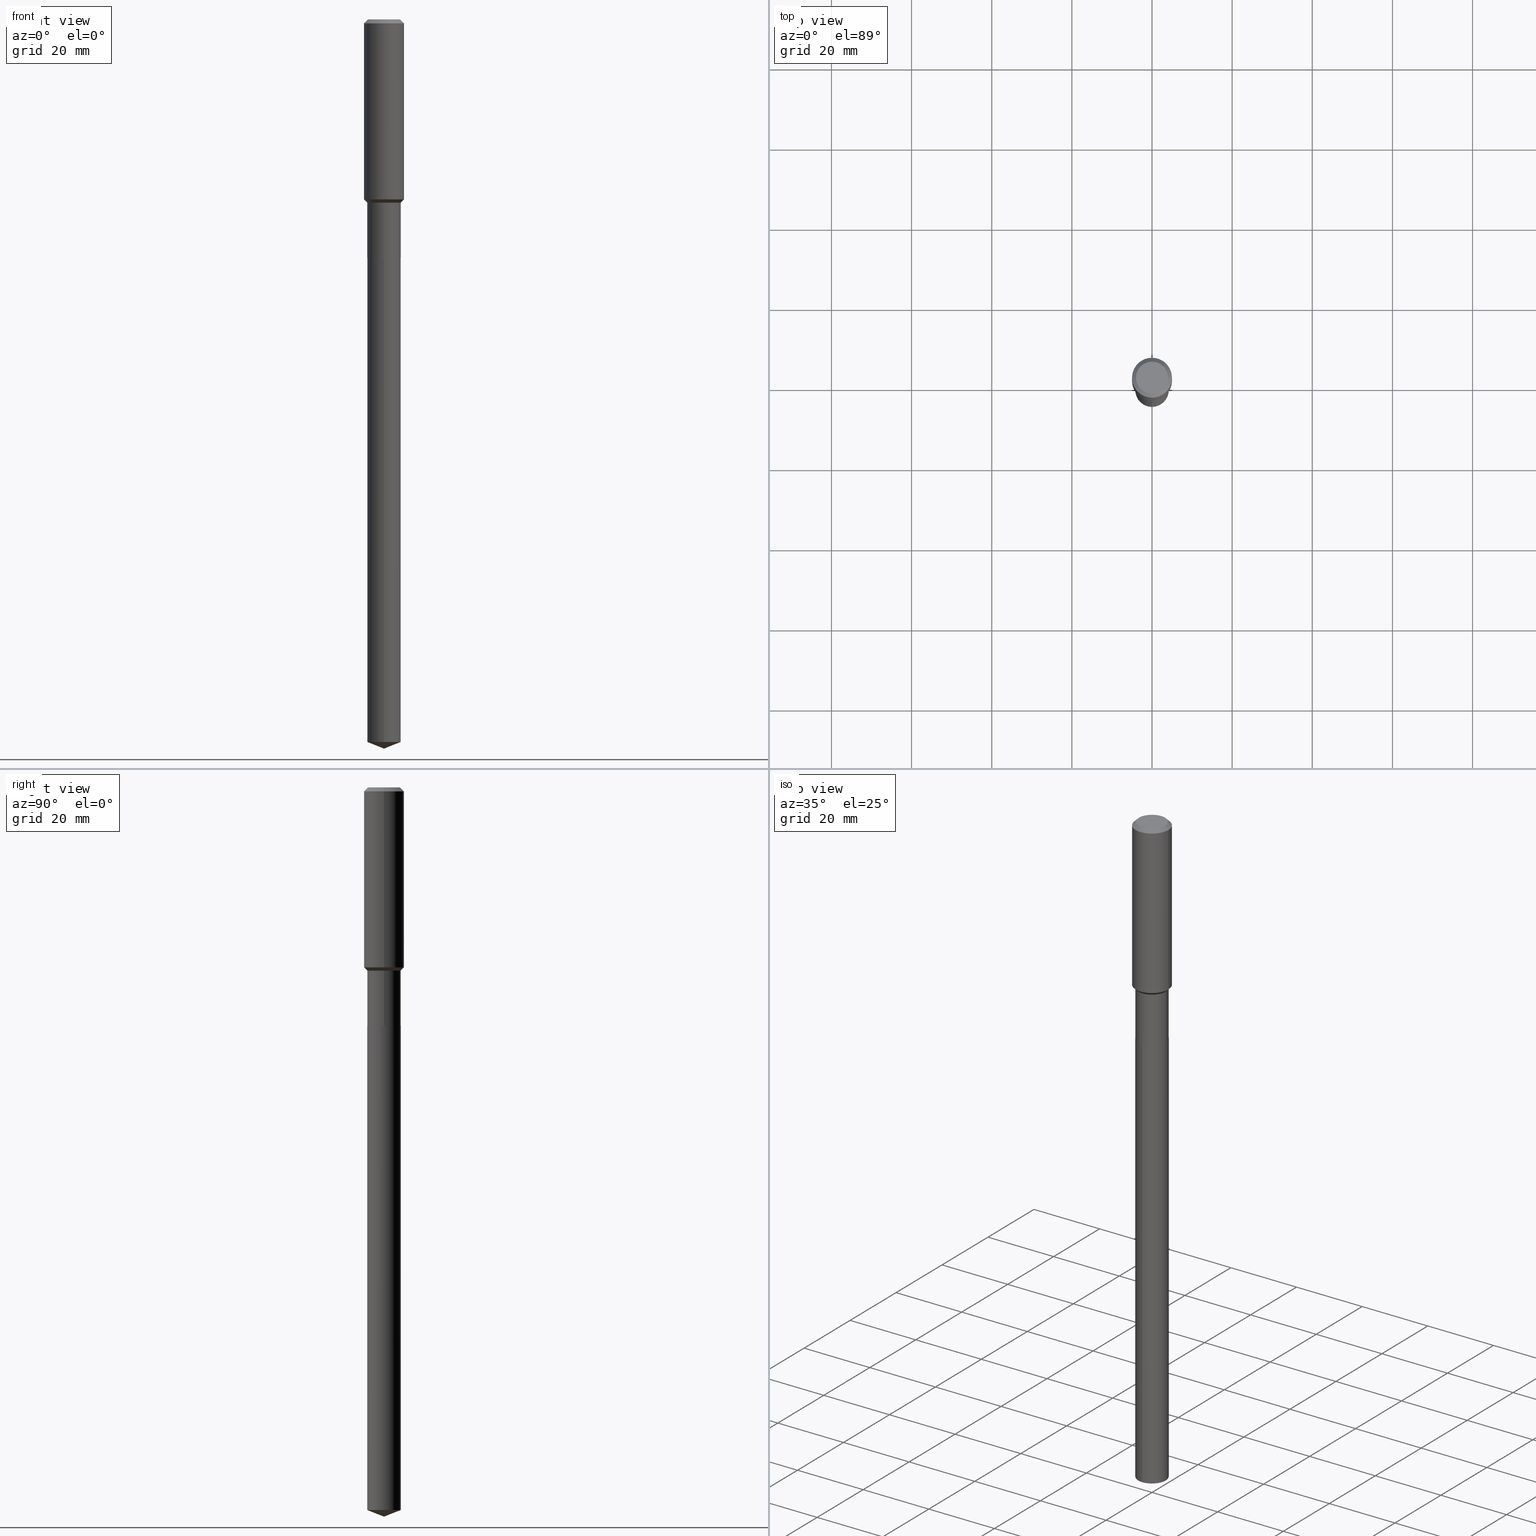
[diagram: canonical four-view strip — front | top / right | iso, engineering-drawing reading convention]
A machine part, canonical four-view strip (front | top / right | iso — engineering-drawing reading convention). The complete STEP part file that produces these views, byte-faithful:
ISO-10303-21;
HEADER;
FILE_DESCRIPTION (( 'STEP AP203' ),
    '1' );
FILE_NAME ('56524.STEP',
    '2024-04-24T18:18:40',
    ( '' ),
    ( '' ),
    'SwSTEP 2.0',
    'SolidWorks 2023',
    '' );
FILE_SCHEMA (( 'CONFIG_CONTROL_DESIGN' ));
ENDSEC;

DATA;
#1 = CARTESIAN_POINT ( 'NONE',  ( 4.403800226178191442E-29, -6.287459594988733378E-15, -1.800799999999999068 ) ) ;
#2 = AXIS2_PLACEMENT_3D ( 'NONE', #238, #19, #346 ) ;
#3 =( NAMED_UNIT ( * ) SI_UNIT ( $, .STERADIAN. ) SOLID_ANGLE_UNIT ( ) );
#4 = CARTESIAN_POINT ( 'NONE',  ( 0.1968500000000002192, -7.547535210177219619E-15, -1.767999999999998684 ) ) ;
#5 = ORIENTED_EDGE ( 'NONE', *, *, #426, .F. ) ;
#6 = CIRCLE ( 'NONE', #84, 0.1640500000000000014 ) ;
#7 = DIRECTION ( 'NONE',  ( -6.497071151882111948E-15, -0.9304175679820234635, 0.3665012267242999666 ) ) ;
#8 = APPROVAL_STATUS ( 'not_yet_approved' ) ;
#9 = PLANE ( 'NONE',  #331 ) ;
#10 = ORIENTED_EDGE ( 'NONE', *, *, #137, .F. ) ;
#11 = ADVANCED_FACE ( 'NONE', ( #340 ), #9, .F. ) ;
#12 = CARTESIAN_POINT ( 'NONE',  ( -9.427742298522567634E-47, 1.346031739168368355E-32, 3.855188123715870730E-18 ) ) ;
#13 = ORIENTED_EDGE ( 'NONE', *, *, #332, .F. ) ;
#14 = LOCAL_TIME ( 14, 18, 40.00000000000000000, #242 ) ;
#15 = ORIENTED_EDGE ( 'NONE', *, *, #335, .T. ) ;
#16 = CARTESIAN_POINT ( 'NONE',  ( -0.1635500000000000009, -7.012656572194777163E-15, -2.342100000000000293 ) ) ;
#17 = EDGE_LOOP ( 'NONE', ( #378, #196, #264, #66 ) ) ;
#18 = ORIENTED_EDGE ( 'NONE', *, *, #254, .F. ) ;
#19 = DIRECTION ( 'NONE',  ( 2.445468806185136597E-29, -3.491481338843145583E-15, -1.000000000000000000 ) ) ;
#20 = EDGE_CURVE ( 'NONE', #272, #273, #90, .T. ) ;
#21 = APPROVAL_STATUS ( 'not_yet_approved' ) ;
#22 = DIRECTION ( 'NONE',  ( -0.7071067811865453523, 2.468850131082234184E-15, -0.7071067811865496822 ) ) ;
#23 = DIRECTION ( 'NONE',  ( -2.445468806185136597E-29, 3.491481338843145583E-15, 1.000000000000000000 ) ) ;
#24 = VECTOR ( 'NONE', #22, 39.37007874015748143 ) ;
#25 = CARTESIAN_POINT ( 'NONE',  ( 1.752193187983949618E-28, -2.501625201518920101E-14, -7.165000000000000036 ) ) ;
#26 = CIRCLE ( 'NONE', #160, 0.1574800000000000089 ) ;
#27 = EDGE_CURVE ( 'NONE', #406, #231, #47, .T. ) ;
#28 = CARTESIAN_POINT ( 'NONE',  ( 1.752193272761362353E-28, -2.501625201518920101E-14, -7.165000000000000036 ) ) ;
#29 = LINE ( 'NONE', #288, #83 ) ;
#30 =( GEOMETRIC_REPRESENTATION_CONTEXT ( 3 ) GLOBAL_UNCERTAINTY_ASSIGNED_CONTEXT ( ( #96 ) ) GLOBAL_UNIT_ASSIGNED_CONTEXT ( ( #227, #411, #3 ) ) REPRESENTATION_CONTEXT ( 'NONE', 'WORKASPACE' ) );
#31 = APPROVAL_PERSON_ORGANIZATION ( #483, #450, #56 ) ;
#32 = SECURITY_CLASSIFICATION ( '', '', #389 ) ;
#33 = CARTESIAN_POINT ( 'NONE',  ( 1.165645358014617717E-15, 0.1640499999999751601, -7.100378986475369913 ) ) ;
#34 = ADVANCED_FACE ( 'NONE', ( #325 ), #218, .T. ) ;
#35 = ORIENTED_EDGE ( 'NONE', *, *, #40, .F. ) ;
#36 = DESIGN_CONTEXT ( 'detailed design', #372, 'design' ) ;
#37 = PRODUCT_DEFINITION_FORMATION_WITH_SPECIFIED_SOURCE ( 'ANY', '', #374, .NOT_KNOWN. ) ;
#38 = ORIENTED_EDGE ( 'NONE', *, *, #178, .F. ) ;
#39 = ORIENTED_EDGE ( 'NONE', *, *, #490, .F. ) ;
#40 = EDGE_CURVE ( 'NONE', #474, #89, #29, .T. ) ;
#41 = CONICAL_SURFACE ( 'NONE', #447, 99.94676754583905165, 1.195550537616116404 ) ;
#42 = CARTESIAN_POINT ( 'NONE',  ( 9.627810689950943645E-31, -1.374596203102555315E-16, -0.03937000000000024508 ) ) ;
#43 = COORDINATED_UNIVERSAL_TIME_OFFSET ( 5, 0, .BEHIND. ) ;
#44 = DIRECTION ( 'NONE',  ( 1.000000000000000000, -6.982962677686265922E-15, 4.876176775795935793E-29 ) ) ;
#45 = VERTEX_POINT ( 'NONE', #249 ) ;
#46 = CARTESIAN_POINT ( 'NONE',  ( -7.875722850354582093E-28, 1.124424103179934849E-13, 32.20507874015748229 ) ) ;
#47 = LINE ( 'NONE', #94, #291 ) ;
#48 = VERTEX_POINT ( 'NONE', #361 ) ;
#49 = ORIENTED_EDGE ( 'NONE', *, *, #350, .T. ) ;
#50 = FACE_OUTER_BOUND ( 'NONE', #317, .T. ) ;
#51 = CC_DESIGN_PERSON_AND_ORGANIZATION_ASSIGNMENT ( #427, #247, ( #37 ) ) ;
#52 = EDGE_LOOP ( 'NONE', ( #161, #429, #13, #230 ) ) ;
#53 = FACE_OUTER_BOUND ( 'NONE', #388, .T. ) ;
#54 = DIRECTION ( 'NONE',  ( -1.000000000000000000, 6.982962677686265922E-15, -4.876176775795935793E-29 ) ) ;
#55 = AXIS2_PLACEMENT_3D ( 'NONE', #119, #403, #70 ) ;
#56 = APPROVAL_ROLE ( '' ) ;
#57 = AXIS2_PLACEMENT_3D ( 'NONE', #271, #428, #100 ) ;
#58 = CARTESIAN_POINT ( 'NONE',  ( 9.627810689950943645E-31, -1.374596203102555315E-16, -0.03937000000000024508 ) ) ;
#59 = ORIENTED_EDGE ( 'NONE', *, *, #20, .F. ) ;
#60 = FACE_OUTER_BOUND ( 'NONE', #341, .T. ) ;
#61 = CALENDAR_DATE ( 2024, 24, 4 ) ;
#62 = LINE ( 'NONE', #182, #243 ) ;
#63 = CYLINDRICAL_SURFACE ( 'NONE', #352, 0.1968500000000001082 ) ;
#64 = DIRECTION ( 'NONE',  ( 6.982962677686265922E-15, 1.000000000000000000, -3.491451781603517601E-15 ) ) ;
#65 = CARTESIAN_POINT ( 'NONE',  ( -0.1640500000000000014, 1.165645358014444365E-15, -8.069513015563172164E-30 ) ) ;
#66 = ORIENTED_EDGE ( 'NONE', *, *, #236, .F. ) ;
#67 = ADVANCED_FACE ( 'NONE', ( #156 ), #449, .T. ) ;
#68 = COORDINATED_UNIVERSAL_TIME_OFFSET ( 5, 0, .BEHIND. ) ;
#69 = APPROVAL_PERSON_ORGANIZATION ( #311, #183, #173 ) ;
#70 = DIRECTION ( 'NONE',  ( -6.982962677686265133E-15, -1.000000000000000000, 3.330506545156066257E-15 ) ) ;
#71 = AXIS2_PLACEMENT_3D ( 'NONE', #103, #241, #54 ) ;
#72 = DIRECTION ( 'NONE',  ( 1.000000000000000000, -6.982962677686265922E-15, 0.000000000000000000 ) ) ;
#73 = CARTESIAN_POINT ( 'NONE',  ( 4.323588849335318687E-29, -6.172939007074677222E-15, -1.767999999999998684 ) ) ;
#74 = CARTESIAN_POINT ( 'NONE',  ( 5.727532490966208999E-29, -8.177398443704531239E-15, -2.342100000000000293 ) ) ;
#75 = CARTESIAN_POINT ( 'NONE',  ( 0.1640500000000000014, -1.145555027274432057E-15, 7.999368000693231542E-30 ) ) ;
#76 = ADVANCED_FACE ( 'NONE', ( #443 ), #399, .F. ) ;
#77 = VERTEX_POINT ( 'NONE', #25 ) ;
#78 = CARTESIAN_POINT ( 'NONE',  ( 5.727532490966208999E-29, -8.177398443704531239E-15, -2.342100000000000293 ) ) ;
#79 = ADVANCED_FACE ( 'NONE', ( #353 ), #111, .T. ) ;
#80 = CARTESIAN_POINT ( 'NONE',  ( 0.1968500000000001082, -1.374596203102542397E-15, 9.598753983154305062E-30 ) ) ;
#81 = CARTESIAN_POINT ( 'NONE',  ( 0.000000000000000000, 0.000000000000000000, 0.000000000000000000 ) ) ;
#82 = ADVANCED_FACE ( 'NONE', ( #60 ), #129, .T. ) ;
#83 = VECTOR ( 'NONE', #488, 39.37007874015748143 ) ;
#84 = AXIS2_PLACEMENT_3D ( 'NONE', #265, #301, #339 ) ;
#85 = ORIENTED_EDGE ( 'NONE', *, *, #132, .T. ) ;
#86 = CYLINDRICAL_SURFACE ( 'NONE', #259, 0.1640500000000000014 ) ;
#87 = ORIENTED_EDGE ( 'NONE', *, *, #350, .F. ) ;
#88 = DIRECTION ( 'NONE',  ( -2.445468806185136597E-29, 3.491481338843145583E-15, 1.000000000000000000 ) ) ;
#89 = VERTEX_POINT ( 'NONE', #355 ) ;
#90 = CIRCLE ( 'NONE', #313, 0.1574800000000000089 ) ;
#91 = VECTOR ( 'NONE', #187, 39.37007874015748143 ) ;
#92 = MANIFOLD_SOLID_BREP ( 'Body-Move/Copy2[1]', #228 ) ;
#93 = CALENDAR_DATE ( 2024, 24, 4 ) ;
#94 = CARTESIAN_POINT ( 'NONE',  ( 0.1640499999999999459, -7.433014622263164252E-15, -1.800799999999999068 ) ) ;
#95 = VERTEX_POINT ( 'NONE', #203 ) ;
#96 = UNCERTAINTY_MEASURE_WITH_UNIT (LENGTH_MEASURE( 1.000000000000000082E-05 ), #227, 'distance_accuracy_value', 'NONE');
#97 = CC_DESIGN_DATE_AND_TIME_ASSIGNMENT ( #278, #442, ( #232 ) ) ;
#98 = PERSON_AND_ORGANIZATION ( #274, #120 ) ;
#99 = DIRECTION ( 'NONE',  ( -1.000000000000000000, 6.982962677686265922E-15, 0.000000000000000000 ) ) ;
#100 = DIRECTION ( 'NONE',  ( 1.000000000000000000, -6.982962677686266711E-15, 0.000000000000000000 ) ) ;
#101 = EDGE_LOOP ( 'NONE', ( #419, #384 ) ) ;
#102 = DIRECTION ( 'NONE',  ( -6.982962677686267499E-15, -1.000000000000000000, 3.498627837350036566E-15 ) ) ;
#103 = CARTESIAN_POINT ( 'NONE',  ( -4.713871149261283817E-47, 6.730158695841841775E-33, 1.927594061857935365E-18 ) ) ;
#104 = ORIENTED_EDGE ( 'NONE', *, *, #132, .F. ) ;
#105 = APPROVAL_DATE_TIME ( #148, #450 ) ;
#106 = ORIENTED_EDGE ( 'NONE', *, *, #236, .T. ) ;
#107 = AXIS2_PLACEMENT_3D ( 'NONE', #154, #115, #112 ) ;
#108 = SHAPE_DEFINITION_REPRESENTATION ( #302, #296 ) ;
#109 = ORIENTED_EDGE ( 'NONE', *, *, #445, .T. ) ;
#110 = DATE_AND_TIME ( #481, #412 ) ;
#111 = CYLINDRICAL_SURFACE ( 'NONE', #329, 0.1640500000000000014 ) ;
#112 = DIRECTION ( 'NONE',  ( 1.000000000000000000, -6.982962677686260400E-15, 0.000000000000000000 ) ) ;
#113 = EDGE_CURVE ( 'NONE', #273, #267, #153, .T. ) ;
#114 = CALENDAR_DATE ( 2024, 24, 4 ) ;
#115 = DIRECTION ( 'NONE',  ( -2.445468806185136597E-29, 3.491481338843145583E-15, 1.000000000000000000 ) ) ;
#116 = DIRECTION ( 'NONE',  ( 1.000000000000000000, -6.982962677686261977E-15, 0.000000000000000000 ) ) ;
#117 = VECTOR ( 'NONE', #284, 39.37007874015748143 ) ;
#118 = DIRECTION ( 'NONE',  ( 1.000000000000000000, 0.000000000000000000, 0.000000000000000000 ) ) ;
#119 = CARTESIAN_POINT ( 'NONE',  ( 5.727532490966208999E-29, -8.177398443704531239E-15, -2.342100000000000293 ) ) ;
#120 = ORGANIZATION ( 'UNSPECIFIED', 'UNSPECIFIED', '' ) ;
#121 = LENGTH_MEASURE_WITH_UNIT ( LENGTH_MEASURE( 0.02539999999999999897 ), #166 );
#122 = VECTOR ( 'NONE', #425, 39.37007874015748143 ) ;
#123 = CIRCLE ( 'NONE', #190, 0.1640500000000000569 ) ;
#124 = DIRECTION ( 'NONE',  ( -2.445468806185136597E-29, 3.491481338843145583E-15, 1.000000000000000000 ) ) ;
#125 = EDGE_CURVE ( 'NONE', #474, #152, #392, .T. ) ;
#126 = DIRECTION ( 'NONE',  ( -2.445468806185136597E-29, 3.491481338843145583E-15, 1.000000000000000000 ) ) ;
#127 = LOCAL_TIME ( 14, 18, 40.00000000000000000, #68 ) ;
#128 = DIRECTION ( 'NONE',  ( 1.000000000000000000, -6.982962677686265922E-15, 0.000000000000000000 ) ) ;
#129 = CONICAL_SURFACE ( 'NONE', #197, 0.1640499999999999459, 0.7853981633974482790 ) ;
#130 = ORIENTED_EDGE ( 'NONE', *, *, #27, .T. ) ;
#131 = DATE_AND_TIME ( #93, #261 ) ;
#132 = EDGE_CURVE ( 'NONE', #48, #314, #62, .T. ) ;
#133 = ORIENTED_EDGE ( 'NONE', *, *, #254, .T. ) ;
#134 = EDGE_CURVE ( 'NONE', #267, #345, #304, .T. ) ;
#135 = ORIENTED_EDGE ( 'NONE', *, *, #396, .T. ) ;
#136 = ORIENTED_EDGE ( 'NONE', *, *, #363, .F. ) ;
#137 = EDGE_CURVE ( 'NONE', #416, #267, #310, .T. ) ;
#138 = CARTESIAN_POINT ( 'NONE',  ( -9.427742298522567634E-47, 1.346031739168368355E-32, 3.855188123715870730E-18 ) ) ;
#139 = DIRECTION ( 'NONE',  ( -6.982962677686265133E-15, -1.000000000000000000, 3.330506545156066257E-15 ) ) ;
#140 = ORIENTED_EDGE ( 'NONE', *, *, #290, .T. ) ;
#141 = ORIENTED_EDGE ( 'NONE', *, *, #191, .T. ) ;
#142 = DIRECTION ( 'NONE',  ( -2.445489445895254292E-29, 3.491451781603517601E-15, 1.000000000000000000 ) ) ;
#143 = ADVANCED_FACE ( 'NONE', ( #53 ), #451, .T. ) ;
#144 = PERSON_AND_ORGANIZATION ( #274, #120 ) ;
#145 = ORIENTED_EDGE ( 'NONE', *, *, #219, .F. ) ;
#146 = CARTESIAN_POINT ( 'NONE',  ( 1.736385353301688746E-28, -2.479070008840053983E-14, -7.100378986475368137 ) ) ;
#147 = CC_DESIGN_APPROVAL ( #450, ( #32 ) ) ;
#148 = DATE_AND_TIME ( #114, #127 ) ;
#149 = ORIENTED_EDGE ( 'NONE', *, *, #461, .F. ) ;
#150 = CARTESIAN_POINT ( 'NONE',  ( -0.1640499999999999459, -5.121814236974288816E-15, -1.800799999999999068 ) ) ;
#151 = CARTESIAN_POINT ( 'NONE',  ( 0.000000000000000000, 0.000000000000000000, 0.000000000000000000 ) ) ;
#152 = VERTEX_POINT ( 'NONE', #16 ) ;
#153 = LINE ( 'NONE', #475, #24 ) ;
#154 = CARTESIAN_POINT ( 'NONE',  ( 5.727532490966208999E-29, -8.177398443704531239E-15, -2.342100000000000293 ) ) ;
#155 = COORDINATED_UNIVERSAL_TIME_OFFSET ( 5, 0, .BEHIND. ) ;
#156 = FACE_OUTER_BOUND ( 'NONE', #181, .T. ) ;
#157 = CARTESIAN_POINT ( 'NONE',  ( 0.000000000000000000, 0.000000000000000000, 0.000000000000000000 ) ) ;
#158 = CARTESIAN_POINT ( 'NONE',  ( 5.727532490966208999E-29, -8.177398443704531239E-15, -2.342100000000000293 ) ) ;
#159 = DIRECTION ( 'NONE',  ( -2.445489445895254572E-29, 3.491451781603517601E-15, 1.000000000000000000 ) ) ;
#160 = AXIS2_PLACEMENT_3D ( 'NONE', #138, #126, #195 ) ;
#161 = ORIENTED_EDGE ( 'NONE', *, *, #219, .T. ) ;
#162 = ADVANCED_FACE ( 'NONE', ( #315 ), #375, .T. ) ;
#163 = DIRECTION ( 'NONE',  ( 1.000000000000000000, -6.982962677686266711E-15, 0.000000000000000000 ) ) ;
#164 = ADVANCED_FACE ( 'NONE', ( #257 ), #165, .T. ) ;
#165 = CONICAL_SURFACE ( 'NONE', #270, 0.1968500000000000250, 0.7853981633974452814 ) ;
#166 =( LENGTH_UNIT ( ) NAMED_UNIT ( * ) SI_UNIT ( $, .METRE. ) );
#167 = DIRECTION ( 'NONE',  ( 1.000000000000000000, -6.982962677686260400E-15, 0.000000000000000000 ) ) ;
#168 = PRODUCT_RELATED_PRODUCT_CATEGORY ( 'detail', '', ( #374 ) ) ;
#169 = CARTESIAN_POINT ( 'NONE',  ( 1.752183519930936340E-28, -2.501639046721106603E-14, -7.165000000000000036 ) ) ;
#170 = EDGE_LOOP ( 'NONE', ( #306, #140, #379 ) ) ;
#171 = CONICAL_SURFACE ( 'NONE', #282, 0.1635500000000000009, 0.7853981633976190313 ) ;
#172 = DIRECTION ( 'NONE',  ( -2.445489445895254292E-29, 3.491451781603517601E-15, 1.000000000000000000 ) ) ;
#173 = APPROVAL_ROLE ( '' ) ;
#174 = CARTESIAN_POINT ( 'NONE',  ( 5.727532490966208999E-29, -8.177398443704531239E-15, -2.342100000000000293 ) ) ;
#175 = ORIENTED_EDGE ( 'NONE', *, *, #113, .F. ) ;
#176 = ADVANCED_FACE ( 'NONE', ( #383 ), #41, .T. ) ;
#177 = ORIENTED_EDGE ( 'NONE', *, *, #342, .F. ) ;
#178 = EDGE_CURVE ( 'NONE', #152, #312, #436, .T. ) ;
#179 = CONICAL_SURFACE ( 'NONE', #107, 0.1635500000000000009, 0.7853981633976190313 ) ;
#180 = APPROVAL_STATUS ( 'not_yet_approved' ) ;
#181 = EDGE_LOOP ( 'NONE', ( #418, #460, #85, #458 ) ) ;
#182 = CARTESIAN_POINT ( 'NONE',  ( -1.145555027274374667E-15, -0.1640500000000081615, -2.342099999999999405 ) ) ;
#183 = APPROVAL ( #8, 'UNSPECIFIED' ) ;
#184 = COORDINATED_UNIVERSAL_TIME_OFFSET ( 5, 0, .BEHIND. ) ;
#185 = AXIS2_PLACEMENT_3D ( 'NONE', #337, #172, #307 ) ;
#186 = PERSON_AND_ORGANIZATION ( #274, #120 ) ;
#187 = DIRECTION ( 'NONE',  ( 0.7071067811865453523, -7.319954787623248157E-15, -0.7071067811865496822 ) ) ;
#188 = CC_DESIGN_APPROVAL ( #183, ( #232 ) ) ;
#189 = CIRCLE ( 'NONE', #455, 0.1968500000000000250 ) ;
#190 = AXIS2_PLACEMENT_3D ( 'NONE', #468, #286, #359 ) ;
#191 = EDGE_CURVE ( 'NONE', #273, #272, #26, .T. ) ;
#192 = CARTESIAN_POINT ( 'NONE',  ( -0.1968500000000002192, -4.774235631730917856E-15, -1.767999999999998684 ) ) ;
#193 = AXIS2_PLACEMENT_3D ( 'NONE', #260, #410, #226 ) ;
#194 = EDGE_LOOP ( 'NONE', ( #38, #417, #391, #149 ) ) ;
#195 = DIRECTION ( 'NONE',  ( 1.000000000000000000, -6.982962677686265922E-15, 4.876223630392693006E-29 ) ) ;
#196 = ORIENTED_EDGE ( 'NONE', *, *, #137, .T. ) ;
#197 = AXIS2_PLACEMENT_3D ( 'NONE', #439, #210, #213 ) ;
#198 = ORIENTED_EDGE ( 'NONE', *, *, #485, .F. ) ;
#199 = VERTEX_POINT ( 'NONE', #33 ) ;
#200 = DIRECTION ( 'NONE',  ( 1.000000000000000000, -6.982962677686265922E-15, 0.000000000000000000 ) ) ;
#201 = ADVANCED_FACE ( 'NONE', ( #334 ), #171, .T. ) ;
#202 = ORIENTED_EDGE ( 'NONE', *, *, #215, .T. ) ;
#203 = CARTESIAN_POINT ( 'NONE',  ( -0.1640499999999999459, -6.065910790997477389E-15, -1.800799999999999068 ) ) ;
#204 = ORIENTED_EDGE ( 'NONE', *, *, #235, .T. ) ;
#205 = ORIENTED_EDGE ( 'NONE', *, *, #461, .T. ) ;
#206 = CARTESIAN_POINT ( 'NONE',  ( -1.145555027274374667E-15, -0.1640500000000081615, -2.342099999999999405 ) ) ;
#207 = CLOSED_SHELL ( 'NONE', ( #201, #143, #34, #448, #387, #79, #82, #303, #164, #258, #11, #326 ) ) ;
#208 = CIRCLE ( 'NONE', #333, 0.1968500000000002192 ) ;
#209 = DIRECTION ( 'NONE',  ( 2.445468806185136597E-29, -3.491481338843145583E-15, -1.000000000000000000 ) ) ;
#210 = DIRECTION ( 'NONE',  ( -2.445468806185136597E-29, 3.491481338843145583E-15, 1.000000000000000000 ) ) ;
#211 = FACE_OUTER_BOUND ( 'NONE', #423, .T. ) ;
#212 = DIMENSIONAL_EXPONENTS ( 1.000000000000000000, 0.000000000000000000, 0.000000000000000000, 0.000000000000000000, 0.000000000000000000, 0.000000000000000000, 0.000000000000000000 ) ;
#213 = DIRECTION ( 'NONE',  ( 1.000000000000000000, -6.982962677686266711E-15, 0.000000000000000000 ) ) ;
#214 = DIRECTION ( 'NONE',  ( -2.445468806185136877E-29, 3.491481338843145188E-15, 1.000000000000000000 ) ) ;
#215 = EDGE_CURVE ( 'NONE', #45, #314, #6, .T. ) ;
#216 = AXIS2_PLACEMENT_3D ( 'NONE', #467, #142, #102 ) ;
#217 = CARTESIAN_POINT ( 'NONE',  ( -0.1574800000000000089, 1.168406772637159618E-15, 3.855188123707939751E-18 ) ) ;
#218 = CYLINDRICAL_SURFACE ( 'NONE', #390, 0.1968500000000001082 ) ;
#219 = EDGE_CURVE ( 'NONE', #406, #95, #234, .T. ) ;
#220 = DIRECTION ( 'NONE',  ( -2.445468806185136597E-29, 3.491481338843145583E-15, 1.000000000000000000 ) ) ;
#221 = AXIS2_PLACEMENT_3D ( 'NONE', #489, #446, #116 ) ;
#222 = LINE ( 'NONE', #367, #245 ) ;
#223 = AXIS2_PLACEMENT_3D ( 'NONE', #480, #444, #118 ) ;
#224 = LINE ( 'NONE', #169, #393 ) ;
#225 = LINE ( 'NONE', #75, #464 ) ;
#226 = DIRECTION ( 'NONE',  ( 1.000000000000000000, -6.982962677686260400E-15, 0.000000000000000000 ) ) ;
#227 =( CONVERSION_BASED_UNIT ( 'INCH', #121 ) LENGTH_UNIT ( ) NAMED_UNIT ( #212 ) );
#228 = CLOSED_SHELL ( 'NONE', ( #371, #176, #162, #67, #76 ) ) ;
#229 = VECTOR ( 'NONE', #373, 39.37007874015748143 ) ;
#230 = ORIENTED_EDGE ( 'NONE', *, *, #27, .F. ) ;
#231 = VERTEX_POINT ( 'NONE', #4 ) ;
#232 = PRODUCT_DEFINITION ( 'UNKNOWN', '', #37, #36 ) ;
#233 = EDGE_LOOP ( 'NONE', ( #133, #15, #145, #5 ) ) ;
#234 = CIRCLE ( 'NONE', #407, 0.1640499999999999459 ) ;
#235 = EDGE_CURVE ( 'NONE', #77, #48, #224, .T. ) ;
#236 = EDGE_CURVE ( 'NONE', #231, #345, #409, .T. ) ;
#237 = ORIENTED_EDGE ( 'NONE', *, *, #178, .T. ) ;
#238 = CARTESIAN_POINT ( 'NONE',  ( 9.627810689950943645E-31, -1.374596203102555315E-16, -0.03937000000000024508 ) ) ;
#239 = DIRECTION ( 'NONE',  ( -6.982962677686267499E-15, -1.000000000000000000, 3.498627837350036566E-15 ) ) ;
#240 = EDGE_LOOP ( 'NONE', ( #49, #202 ) ) ;
#241 = DIRECTION ( 'NONE',  ( 2.438088387897960049E-29, -3.491481338843145188E-15, -1.000000000000000000 ) ) ;
#242 = COORDINATED_UNIVERSAL_TIME_OFFSET ( 5, 0, .BEHIND. ) ;
#243 = VECTOR ( 'NONE', #358, 39.37007874015748143 ) ;
#244 = DIRECTION ( 'NONE',  ( 6.611014441532057911E-15, 0.9304175679820260170, 0.3665012267242933608 ) ) ;
#245 = VECTOR ( 'NONE', #159, 39.37007874015748143 ) ;
#246 = CIRCLE ( 'NONE', #369, 0.1968500000000002192 ) ;
#247 = PERSON_AND_ORGANIZATION_ROLE ( 'creator' ) ;
#248 = ORIENTED_EDGE ( 'NONE', *, *, #363, .T. ) ;
#249 = CARTESIAN_POINT ( 'NONE',  ( 1.165645358014618506E-15, 0.1640499999999918412, -2.342100000000000737 ) ) ;
#250 = DIRECTION ( 'NONE',  ( -2.445468806185136597E-29, 3.491481338843145583E-15, 1.000000000000000000 ) ) ;
#251 = DIRECTION ( 'NONE',  ( 0.7071067811865474617, -2.468850131082256666E-15, 0.7071067811865474617 ) ) ;
#252 = MECHANICAL_CONTEXT ( 'NONE', #357, 'mechanical' ) ;
#253 = EDGE_CURVE ( 'NONE', #48, #199, #421, .T. ) ;
#254 = EDGE_CURVE ( 'NONE', #89, #312, #123, .T. ) ;
#255 = MANIFOLD_SOLID_BREP ( 'Body-Move/Copy2[2]', #207 ) ;
#256 = CARTESIAN_POINT ( 'NONE',  ( 0.1635500000000000009, -9.319461989640119105E-15, -2.342100000000000293 ) ) ;
#257 = FACE_OUTER_BOUND ( 'NONE', #266, .T. ) ;
#258 = ADVANCED_FACE ( 'NONE', ( #211 ), #431, .F. ) ;
#259 = AXIS2_PLACEMENT_3D ( 'NONE', #81, #88, #456 ) ;
#260 = CARTESIAN_POINT ( 'NONE',  ( 5.727532490966208999E-29, -8.177398443704531239E-15, -2.342100000000000293 ) ) ;
#261 = LOCAL_TIME ( 14, 18, 40.00000000000000000, #43 ) ;
#262 = EDGE_CURVE ( 'NONE', #95, #416, #356, .T. ) ;
#263 = AXIS2_PLACEMENT_3D ( 'NONE', #158, #344, #139 ) ;
#264 = ORIENTED_EDGE ( 'NONE', *, *, #396, .F. ) ;
#265 = CARTESIAN_POINT ( 'NONE',  ( 5.727532490966208999E-29, -8.177398443704531239E-15, -2.342100000000000293 ) ) ;
#266 = EDGE_LOOP ( 'NONE', ( #177, #328, #338, #457 ) ) ;
#267 = VERTEX_POINT ( 'NONE', #281 ) ;
#268 = ORIENTED_EDGE ( 'NONE', *, *, #134, .F. ) ;
#269 = CARTESIAN_POINT ( 'NONE',  ( -0.1968500000000001082, 1.398703375343757985E-15, -9.682923725166787881E-30 ) ) ;
#270 = AXIS2_PLACEMENT_3D ( 'NONE', #58, #209, #99 ) ;
#271 = CARTESIAN_POINT ( 'NONE',  ( 4.403800226178191442E-29, -6.287459594988733378E-15, -1.800799999999999068 ) ) ;
#272 = VERTEX_POINT ( 'NONE', #298 ) ;
#273 = VERTEX_POINT ( 'NONE', #217 ) ;
#274 = PERSON ( 'UNSPECIFIED', 'UNSPECIFIED', 'UNSPECIFIED', ('UNSPECIFIED'), ('UNSPECIFIED'), ('UNSPECIFIED') ) ;
#275 = DATE_AND_TIME ( #316, #14 ) ;
#276 = EDGE_LOOP ( 'NONE', ( #466, #205, #343, #136 ) ) ;
#277 = DIRECTION ( 'NONE',  ( -2.445489445895254292E-29, 3.491451781603517601E-15, 1.000000000000000000 ) ) ;
#278 = DATE_AND_TIME ( #61, #279 ) ;
#279 = LOCAL_TIME ( 14, 18, 40.00000000000000000, #155 ) ;
#280 = DIRECTION ( 'NONE',  ( -2.445489445895254292E-29, 3.491451781603517601E-15, 1.000000000000000000 ) ) ;
#281 = CARTESIAN_POINT ( 'NONE',  ( -0.1968500000000000250, -1.756495938348708219E-15, -0.03937000000000024508 ) ) ;
#282 = AXIS2_PLACEMENT_3D ( 'NONE', #78, #336, #167 ) ;
#283 = CIRCLE ( 'NONE', #440, 0.1640500000000000014 ) ;
#284 = DIRECTION ( 'NONE',  ( -0.7071067811866682540, 7.493145998870789611E-15, 0.7071067811864267805 ) ) ;
#285 = DIRECTION ( 'NONE',  ( 1.000000000000000000, -6.982962677686260400E-15, 0.000000000000000000 ) ) ;
#286 = DIRECTION ( 'NONE',  ( -2.445468806185136597E-29, 3.491481338843145583E-15, 1.000000000000000000 ) ) ;
#287 = APPROVAL_DATE_TIME ( #110, #377 ) ;
#288 = CARTESIAN_POINT ( 'NONE',  ( 0.1635500000000000009, -9.319461989640119105E-15, -2.342100000000000293 ) ) ;
#289 = DIRECTION ( 'NONE',  ( 1.000000000000000000, -6.982962677686266711E-15, 4.876176775795935793E-29 ) ) ;
#290 = EDGE_CURVE ( 'NONE', #77, #199, #364, .T. ) ;
#291 = VECTOR ( 'NONE', #251, 39.37007874015748854 ) ;
#292 = DIRECTION ( 'NONE',  ( 1.000000000000000000, -6.982962677686266711E-15, 4.876176775795935793E-29 ) ) ;
#293 = DIRECTION ( 'NONE',  ( -2.445489445895254292E-29, 3.491451781603517601E-15, 1.000000000000000000 ) ) ;
#294 = FACE_OUTER_BOUND ( 'NONE', #52, .T. ) ;
#295 = ORIENTED_EDGE ( 'NONE', *, *, #342, .T. ) ;
#296 = ADVANCED_BREP_SHAPE_REPRESENTATION ( '56524', ( #92, #255, #223 ), #30 ) ;
#297 = APPROVAL_DATE_TIME ( #131, #183 ) ;
#298 = CARTESIAN_POINT ( 'NONE',  ( 0.1574800000000000089, -1.284169937930321189E-15, 3.855188123724205385E-18 ) ) ;
#299 = CC_DESIGN_APPROVAL ( #377, ( #37 ) ) ;
#300 = VECTOR ( 'NONE', #476, 39.37007874015748854 ) ;
#301 = DIRECTION ( 'NONE',  ( -2.445489445895254292E-29, 3.491451781603517601E-15, 1.000000000000000000 ) ) ;
#302 = PRODUCT_DEFINITION_SHAPE ( 'NONE', 'NONE',  #232 ) ;
#303 = ADVANCED_FACE ( 'NONE', ( #395 ), #63, .T. ) ;
#304 = CIRCLE ( 'NONE', #477, 0.1968500000000000250 ) ;
#305 = VECTOR ( 'NONE', #244, 39.37007874015748854 ) ;
#306 = ORIENTED_EDGE ( 'NONE', *, *, #235, .F. ) ;
#307 = DIRECTION ( 'NONE',  ( -6.982962677686265133E-15, -1.000000000000000000, 3.330506545156066257E-15 ) ) ;
#308 = ORIENTED_EDGE ( 'NONE', *, *, #290, .F. ) ;
#309 = EDGE_LOOP ( 'NONE', ( #308, #204, #39 ) ) ;
#310 = LINE ( 'NONE', #269, #122 ) ;
#311 = PERSON_AND_ORGANIZATION ( #274, #120 ) ;
#312 = VERTEX_POINT ( 'NONE', #321 ) ;
#313 = AXIS2_PLACEMENT_3D ( 'NONE', #12, #459, #422 ) ;
#314 = VERTEX_POINT ( 'NONE', #206 ) ;
#315 = FACE_OUTER_BOUND ( 'NONE', #309, .T. ) ;
#316 = CALENDAR_DATE ( 2024, 24, 4 ) ;
#317 = EDGE_LOOP ( 'NONE', ( #347, #109, #87, #104 ) ) ;
#318 = DIRECTION ( 'NONE',  ( 1.000000000000000000, -6.982962677686266711E-15, 4.876176775795935232E-29 ) ) ;
#319 = CC_DESIGN_DATE_AND_TIME_ASSIGNMENT ( #275, #432, ( #32 ) ) ;
#320 = AXIS2_PLACEMENT_3D ( 'NONE', #74, #394, #64 ) ;
#321 = CARTESIAN_POINT ( 'NONE',  ( -0.1640500000000000569, -6.065910790997476600E-15, -2.341600000000000126 ) ) ;
#322 = APPLICATION_PROTOCOL_DEFINITION ( 'international standard', 'config_control_design', 1994, #357 ) ;
#323 = CONICAL_SURFACE ( 'NONE', #368, 0.1640499999999999459, 0.7853981633974482790 ) ;
#324 = PERSON_AND_ORGANIZATION_ROLE ( 'classification_officer' ) ;
#325 = FACE_OUTER_BOUND ( 'NONE', #17, .T. ) ;
#326 = ADVANCED_FACE ( 'NONE', ( #479 ), #179, .T. ) ;
#327 = CARTESIAN_POINT ( 'NONE',  ( 1.736385353301688746E-28, -2.479070008840053983E-14, -7.100378986475368137 ) ) ;
#328 = ORIENTED_EDGE ( 'NONE', *, *, #191, .F. ) ;
#329 = AXIS2_PLACEMENT_3D ( 'NONE', #351, #430, #318 ) ;
#330 = CARTESIAN_POINT ( 'NONE',  ( 4.403800226178191442E-29, -6.287459594988733378E-15, -1.800799999999999068 ) ) ;
#331 = AXIS2_PLACEMENT_3D ( 'NONE', #174, #381, #44 ) ;
#332 = EDGE_CURVE ( 'NONE', #231, #416, #208, .T. ) ;
#333 = AXIS2_PLACEMENT_3D ( 'NONE', #400, #250, #72 ) ;
#334 = FACE_OUTER_BOUND ( 'NONE', #385, .T. ) ;
#335 = EDGE_CURVE ( 'NONE', #312, #95, #398, .T. ) ;
#336 = DIRECTION ( 'NONE',  ( -2.445468806185136597E-29, 3.491481338843145583E-15, 1.000000000000000000 ) ) ;
#337 = CARTESIAN_POINT ( 'NONE',  ( 5.727532490966208999E-29, -8.177398443704531239E-15, -2.342100000000000293 ) ) ;
#338 = ORIENTED_EDGE ( 'NONE', *, *, #113, .T. ) ;
#339 = DIRECTION ( 'NONE',  ( -6.982962677686265133E-15, -1.000000000000000000, 3.330506545156066257E-15 ) ) ;
#340 = FACE_OUTER_BOUND ( 'NONE', #101, .T. ) ;
#341 = EDGE_LOOP ( 'NONE', ( #465, #248, #130, #198 ) ) ;
#342 = EDGE_CURVE ( 'NONE', #272, #345, #362, .T. ) ;
#343 = ORIENTED_EDGE ( 'NONE', *, *, #426, .T. ) ;
#344 = DIRECTION ( 'NONE',  ( -2.445489445895254292E-29, 3.491451781603517601E-15, 1.000000000000000000 ) ) ;
#345 = VERTEX_POINT ( 'NONE', #484 ) ;
#346 = DIRECTION ( 'NONE',  ( -1.000000000000000000, 6.982962677686265922E-15, 0.000000000000000000 ) ) ;
#347 = ORIENTED_EDGE ( 'NONE', *, *, #253, .T. ) ;
#348 = CYLINDRICAL_SURFACE ( 'NONE', #185, 0.1640500000000000014 ) ;
#349 = ORIENTED_EDGE ( 'NONE', *, *, #485, .T. ) ;
#350 = EDGE_CURVE ( 'NONE', #314, #45, #487, .T. ) ;
#351 = CARTESIAN_POINT ( 'NONE',  ( 0.000000000000000000, 0.000000000000000000, 0.000000000000000000 ) ) ;
#352 = AXIS2_PLACEMENT_3D ( 'NONE', #157, #360, #289 ) ;
#353 = FACE_OUTER_BOUND ( 'NONE', #276, .T. ) ;
#354 = PERSON_AND_ORGANIZATION ( #274, #120 ) ;
#355 = CARTESIAN_POINT ( 'NONE',  ( 0.1640500000000000569, -9.321207730309541398E-15, -2.341600000000000126 ) ) ;
#356 = LINE ( 'NONE', #150, #300 ) ;
#357 = APPLICATION_CONTEXT ( 'configuration controlled 3d designs of mechanical parts and assemblies' ) ;
#358 = DIRECTION ( 'NONE',  ( -2.445489445895254572E-29, 3.491451781603517601E-15, 1.000000000000000000 ) ) ;
#359 = DIRECTION ( 'NONE',  ( 1.000000000000000000, -6.982962677686261977E-15, 0.000000000000000000 ) ) ;
#360 = DIRECTION ( 'NONE',  ( -2.445468806185136597E-29, 3.491481338843145583E-15, 1.000000000000000000 ) ) ;
#361 = CARTESIAN_POINT ( 'NONE',  ( -1.145555027274257916E-15, -0.1640500000000247594, -7.100378986475367249 ) ) ;
#362 = LINE ( 'NONE', #365, #91 ) ;
#363 = EDGE_CURVE ( 'NONE', #95, #406, #478, .T. ) ;
#364 = LINE ( 'NONE', #28, #305 ) ;
#365 = CARTESIAN_POINT ( 'NONE',  ( 0.1968500000000000250, -1.487948651171581601E-15, -0.03937000000000024508 ) ) ;
#366 = DIRECTION ( 'NONE',  ( 1.000000000000000000, -6.982962677686265922E-15, 0.000000000000000000 ) ) ;
#367 = CARTESIAN_POINT ( 'NONE',  ( 1.165645358014501360E-15, 0.1640499999999918412, -2.342100000000000737 ) ) ;
#368 = AXIS2_PLACEMENT_3D ( 'NONE', #330, #402, #370 ) ;
#369 = AXIS2_PLACEMENT_3D ( 'NONE', #73, #220, #366 ) ;
#370 = DIRECTION ( 'NONE',  ( 1.000000000000000000, -6.982962677686266711E-15, 0.000000000000000000 ) ) ;
#371 = ADVANCED_FACE ( 'NONE', ( #50 ), #348, .T. ) ;
#372 = APPLICATION_CONTEXT ( 'configuration controlled 3d designs of mechanical parts and assemblies' ) ;
#373 = DIRECTION ( 'NONE',  ( -2.445468806185136877E-29, 3.491481338843145188E-15, 1.000000000000000000 ) ) ;
#374 = PRODUCT ( '56524', '56524', '', ( #252 ) ) ;
#375 = CONICAL_SURFACE ( 'NONE', #216, 99.94676754583905165, 1.195550537616116404 ) ;
#376 = ORIENTED_EDGE ( 'NONE', *, *, #125, .T. ) ;
#377 = APPROVAL ( #180, 'UNSPECIFIED' ) ;
#378 = ORIENTED_EDGE ( 'NONE', *, *, #332, .T. ) ;
#379 = ORIENTED_EDGE ( 'NONE', *, *, #253, .F. ) ;
#380 = VECTOR ( 'NONE', #214, 39.37007874015748143 ) ;
#381 = DIRECTION ( 'NONE',  ( -2.438088387897960049E-29, 3.491481338843145188E-15, 1.000000000000000000 ) ) ;
#382 = ORIENTED_EDGE ( 'NONE', *, *, #20, .T. ) ;
#383 = FACE_OUTER_BOUND ( 'NONE', #170, .T. ) ;
#384 = ORIENTED_EDGE ( 'NONE', *, *, #408, .F. ) ;
#385 = EDGE_LOOP ( 'NONE', ( #376, #237, #18, #35 ) ) ;
#386 = DIRECTION ( 'NONE',  ( -2.445468806185136597E-29, 3.491481338843145583E-15, 1.000000000000000000 ) ) ;
#387 = ADVANCED_FACE ( 'NONE', ( #415 ), #86, .T. ) ;
#388 = EDGE_LOOP ( 'NONE', ( #59, #295, #135, #175 ) ) ;
#389 = SECURITY_CLASSIFICATION_LEVEL ( 'unclassified' ) ;
#390 = AXIS2_PLACEMENT_3D ( 'NONE', #151, #486, #292 ) ;
#391 = ORIENTED_EDGE ( 'NONE', *, *, #40, .T. ) ;
#392 = CIRCLE ( 'NONE', #454, 0.1635500000000000009 ) ;
#393 = VECTOR ( 'NONE', #7, 39.37007874015748143 ) ;
#394 = DIRECTION ( 'NONE',  ( 2.445489445895254011E-29, -3.491451781603517601E-15, -1.000000000000000000 ) ) ;
#395 = FACE_OUTER_BOUND ( 'NONE', #433, .T. ) ;
#396 = EDGE_CURVE ( 'NONE', #345, #267, #189, .T. ) ;
#397 = DIRECTION ( 'NONE',  ( -6.982962677686265133E-15, -1.000000000000000000, 6.661013090312132514E-15 ) ) ;
#398 = LINE ( 'NONE', #65, #380 ) ;
#399 = PLANE ( 'NONE',  #320 ) ;
#400 = CARTESIAN_POINT ( 'NONE',  ( 4.323588849335318687E-29, -6.172939007074677222E-15, -1.767999999999998684 ) ) ;
#401 = CIRCLE ( 'NONE', #193, 0.1635500000000000009 ) ;
#402 = DIRECTION ( 'NONE',  ( -2.445468806185136597E-29, 3.491481338843145583E-15, 1.000000000000000000 ) ) ;
#403 = DIRECTION ( 'NONE',  ( -2.445489445895254292E-29, 3.491451781603517601E-15, 1.000000000000000000 ) ) ;
#404 = DIRECTION ( 'NONE',  ( -2.445468806185136877E-29, 3.491481338843145188E-15, 1.000000000000000000 ) ) ;
#405 = CC_DESIGN_SECURITY_CLASSIFICATION ( #32, ( #37 ) ) ;
#406 = VERTEX_POINT ( 'NONE', #452 ) ;
#407 = AXIS2_PLACEMENT_3D ( 'NONE', #1, #453, #163 ) ;
#408 = EDGE_CURVE ( 'NONE', #152, #474, #401, .T. ) ;
#409 = LINE ( 'NONE', #80, #229 ) ;
#410 = DIRECTION ( 'NONE',  ( -2.445468806185136597E-29, 3.491481338843145583E-15, 1.000000000000000000 ) ) ;
#411 =( NAMED_UNIT ( * ) PLANE_ANGLE_UNIT ( ) SI_UNIT ( $, .RADIAN. ) );
#412 = LOCAL_TIME ( 14, 18, 40.00000000000000000, #184 ) ;
#413 = AXIS2_PLACEMENT_3D ( 'NONE', #146, #277, #434 ) ;
#414 = CC_DESIGN_PERSON_AND_ORGANIZATION_ASSIGNMENT ( #144, #324, ( #32 ) ) ;
#415 = FACE_OUTER_BOUND ( 'NONE', #233, .T. ) ;
#416 = VERTEX_POINT ( 'NONE', #192 ) ;
#417 = ORIENTED_EDGE ( 'NONE', *, *, #408, .T. ) ;
#418 = ORIENTED_EDGE ( 'NONE', *, *, #445, .F. ) ;
#419 = ORIENTED_EDGE ( 'NONE', *, *, #125, .F. ) ;
#420 = CC_DESIGN_PERSON_AND_ORGANIZATION_ASSIGNMENT ( #98, #435, ( #37 ) ) ;
#421 = CIRCLE ( 'NONE', #413, 0.1640500000000000014 ) ;
#422 = DIRECTION ( 'NONE',  ( 1.000000000000000000, -6.982962677686265922E-15, 4.876223630392693006E-29 ) ) ;
#423 = EDGE_LOOP ( 'NONE', ( #141, #382 ) ) ;
#424 = PERSON_AND_ORGANIZATION ( #274, #120 ) ;
#425 = DIRECTION ( 'NONE',  ( -2.445468806185136877E-29, 3.491481338843145188E-15, 1.000000000000000000 ) ) ;
#426 = EDGE_CURVE ( 'NONE', #89, #406, #225, .T. ) ;
#427 = PERSON_AND_ORGANIZATION ( #274, #120 ) ;
#428 = DIRECTION ( 'NONE',  ( -2.445468806185136597E-29, 3.491481338843145583E-15, 1.000000000000000000 ) ) ;
#429 = ORIENTED_EDGE ( 'NONE', *, *, #262, .T. ) ;
#430 = DIRECTION ( 'NONE',  ( -2.445468806185136597E-29, 3.491481338843145583E-15, 1.000000000000000000 ) ) ;
#431 = PLANE ( 'NONE',  #71 ) ;
#432 = DATE_TIME_ROLE ( 'classification_date' ) ;
#433 = EDGE_LOOP ( 'NONE', ( #10, #349, #106, #268 ) ) ;
#434 = DIRECTION ( 'NONE',  ( -6.982962677686265133E-15, -1.000000000000000000, 6.661013090312132514E-15 ) ) ;
#435 = PERSON_AND_ORGANIZATION_ROLE ( 'design_supplier' ) ;
#436 = LINE ( 'NONE', #441, #117 ) ;
#437 = CC_DESIGN_PERSON_AND_ORGANIZATION_ASSIGNMENT ( #186, #482, ( #374 ) ) ;
#438 = CIRCLE ( 'NONE', #221, 0.1640500000000000569 ) ;
#439 = CARTESIAN_POINT ( 'NONE',  ( 4.403800226178191442E-29, -6.287459594988733378E-15, -1.800799999999999068 ) ) ;
#440 = AXIS2_PLACEMENT_3D ( 'NONE', #327, #293, #397 ) ;
#441 = CARTESIAN_POINT ( 'NONE',  ( -0.1635500000000000009, -7.015305799368888364E-15, -2.342100000000000293 ) ) ;
#442 = DATE_TIME_ROLE ( 'creation_date' ) ;
#443 = FACE_OUTER_BOUND ( 'NONE', #240, .T. ) ;
#444 = DIRECTION ( 'NONE',  ( 0.000000000000000000, 0.000000000000000000, 1.000000000000000000 ) ) ;
#445 = EDGE_CURVE ( 'NONE', #199, #45, #222, .T. ) ;
#446 = DIRECTION ( 'NONE',  ( -2.445468806185136597E-29, 3.491481338843145583E-15, 1.000000000000000000 ) ) ;
#447 = AXIS2_PLACEMENT_3D ( 'NONE', #46, #280, #239 ) ;
#448 = ADVANCED_FACE ( 'NONE', ( #294 ), #323, .T. ) ;
#449 = CYLINDRICAL_SURFACE ( 'NONE', #55, 0.1640500000000000014 ) ;
#450 = APPROVAL ( #21, 'UNSPECIFIED' ) ;
#451 = CONICAL_SURFACE ( 'NONE', #2, 0.1968500000000000250, 0.7853981633974452814 ) ;
#452 = CARTESIAN_POINT ( 'NONE',  ( 0.1640499999999999459, -7.433014622263164252E-15, -1.800799999999999068 ) ) ;
#453 = DIRECTION ( 'NONE',  ( -2.445468806185136597E-29, 3.491481338843145583E-15, 1.000000000000000000 ) ) ;
#454 = AXIS2_PLACEMENT_3D ( 'NONE', #471, #386, #285 ) ;
#455 = AXIS2_PLACEMENT_3D ( 'NONE', #42, #124, #128 ) ;
#456 = DIRECTION ( 'NONE',  ( 1.000000000000000000, -6.982962677686266711E-15, 4.876176775795935232E-29 ) ) ;
#457 = ORIENTED_EDGE ( 'NONE', *, *, #134, .T. ) ;
#458 = ORIENTED_EDGE ( 'NONE', *, *, #215, .F. ) ;
#459 = DIRECTION ( 'NONE',  ( -2.445468806185136597E-29, 3.491481338843145583E-15, 1.000000000000000000 ) ) ;
#460 = ORIENTED_EDGE ( 'NONE', *, *, #490, .T. ) ;
#461 = EDGE_CURVE ( 'NONE', #312, #89, #438, .T. ) ;
#462 = CARTESIAN_POINT ( 'NONE',  ( 9.627810689950943645E-31, -1.374596203102555315E-16, -0.03937000000000024508 ) ) ;
#463 = APPROVAL_PERSON_ORGANIZATION ( #354, #377, #473 ) ;
#464 = VECTOR ( 'NONE', #404, 39.37007874015748143 ) ;
#465 = ORIENTED_EDGE ( 'NONE', *, *, #262, .F. ) ;
#466 = ORIENTED_EDGE ( 'NONE', *, *, #335, .F. ) ;
#467 = CARTESIAN_POINT ( 'NONE',  ( -7.875722850354582093E-28, 1.124424103179934849E-13, 32.20507874015748229 ) ) ;
#468 = CARTESIAN_POINT ( 'NONE',  ( 5.726309756563116198E-29, -8.175652703035110524E-15, -2.341600000000000126 ) ) ;
#469 = PERSON_AND_ORGANIZATION_ROLE ( 'creator' ) ;
#470 = APPLICATION_PROTOCOL_DEFINITION ( 'international standard', 'config_control_design', 1994, #372 ) ;
#471 = CARTESIAN_POINT ( 'NONE',  ( 5.727532490966208999E-29, -8.177398443704531239E-15, -2.342100000000000293 ) ) ;
#472 = CC_DESIGN_PERSON_AND_ORGANIZATION_ASSIGNMENT ( #424, #469, ( #232 ) ) ;
#473 = APPROVAL_ROLE ( '' ) ;
#474 = VERTEX_POINT ( 'NONE', #256 ) ;
#475 = CARTESIAN_POINT ( 'NONE',  ( -0.1968500000000000250, 1.237136582792286225E-15, -0.03937000000000024508 ) ) ;
#476 = DIRECTION ( 'NONE',  ( -0.7071067811865474617, 7.493145998870352582E-15, 0.7071067811865474617 ) ) ;
#477 = AXIS2_PLACEMENT_3D ( 'NONE', #462, #23, #200 ) ;
#478 = CIRCLE ( 'NONE', #57, 0.1640499999999999459 ) ;
#479 = FACE_OUTER_BOUND ( 'NONE', #194, .T. ) ;
#480 = CARTESIAN_POINT ( 'NONE',  ( 0.000000000000000000, 0.000000000000000000, 0.000000000000000000 ) ) ;
#481 = CALENDAR_DATE ( 2024, 24, 4 ) ;
#482 = PERSON_AND_ORGANIZATION_ROLE ( 'design_owner' ) ;
#483 = PERSON_AND_ORGANIZATION ( #274, #120 ) ;
#484 = CARTESIAN_POINT ( 'NONE',  ( 0.1968500000000000250, -1.512055823412797189E-15, -0.03937000000000024508 ) ) ;
#485 = EDGE_CURVE ( 'NONE', #416, #231, #246, .T. ) ;
#486 = DIRECTION ( 'NONE',  ( -2.445468806185136597E-29, 3.491481338843145583E-15, 1.000000000000000000 ) ) ;
#487 = CIRCLE ( 'NONE', #263, 0.1640500000000000014 ) ;
#488 = DIRECTION ( 'NONE',  ( 0.7071067811866682540, -2.468850131083521605E-15, 0.7071067811864267805 ) ) ;
#489 = CARTESIAN_POINT ( 'NONE',  ( 5.726309756563116198E-29, -8.175652703035110524E-15, -2.341600000000000126 ) ) ;
#490 = EDGE_CURVE ( 'NONE', #199, #48, #283, .T. ) ;
ENDSEC;
END-ISO-10303-21;
